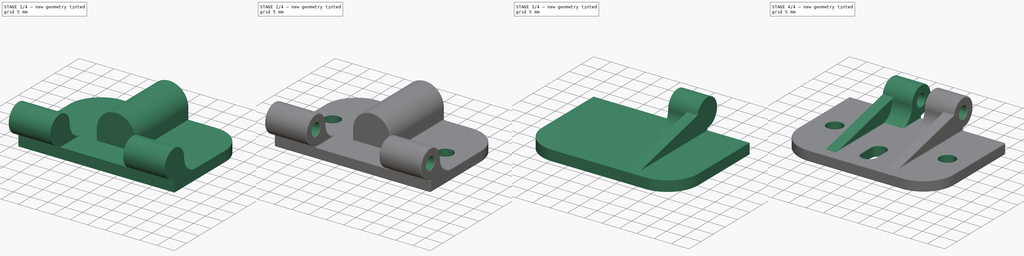
[diagram: build sequence overview — one tinted view per stage of 4, left to right]
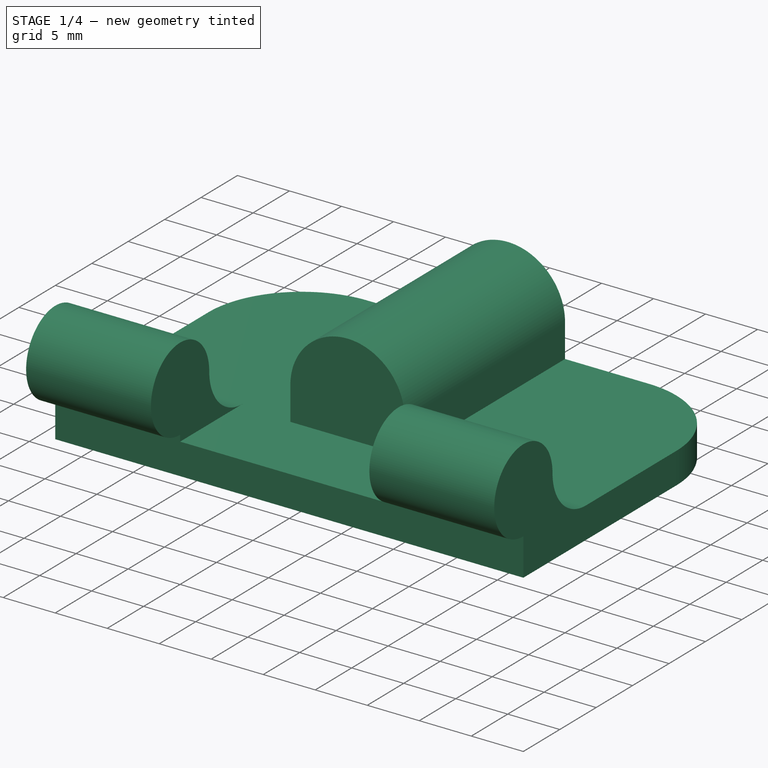
[diagram: stage 1 of 4 — iso view after this stage's code; geometry added in this stage tinted green]
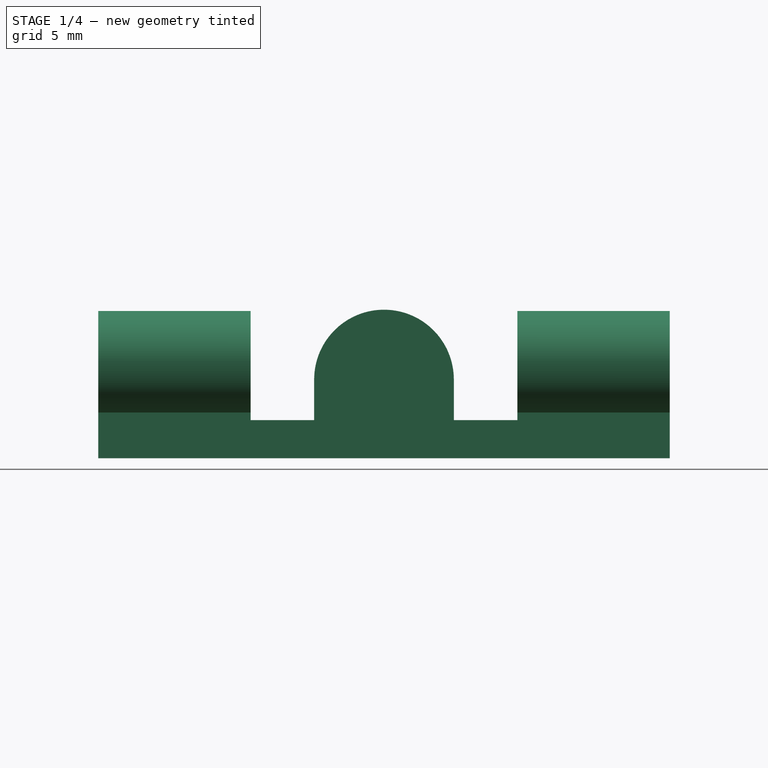
[diagram: stage 1 of 4 — front view after this stage's code; geometry added in this stage tinted green]
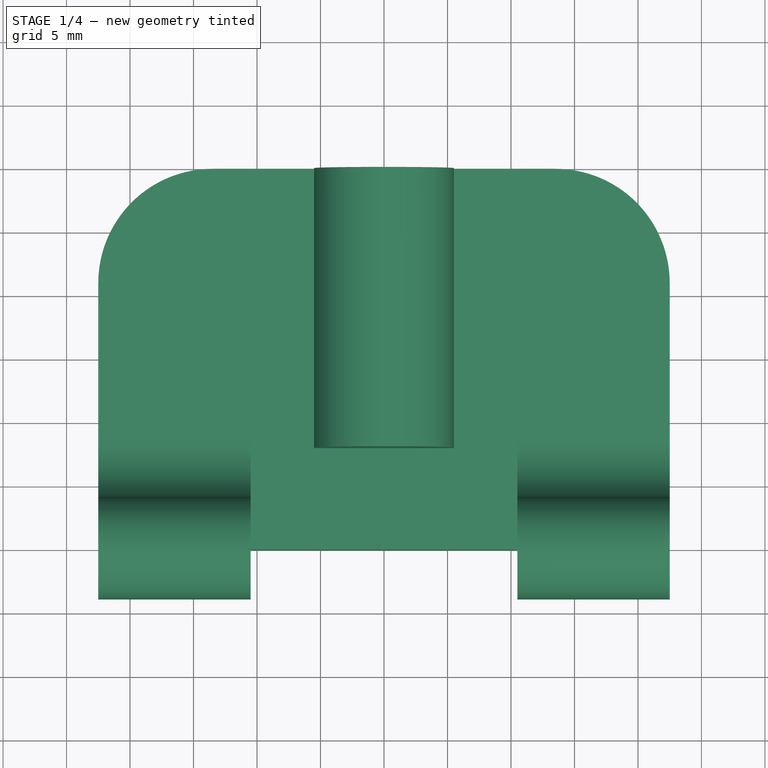
[diagram: stage 1 of 4 — top view after this stage's code; geometry added in this stage tinted green]
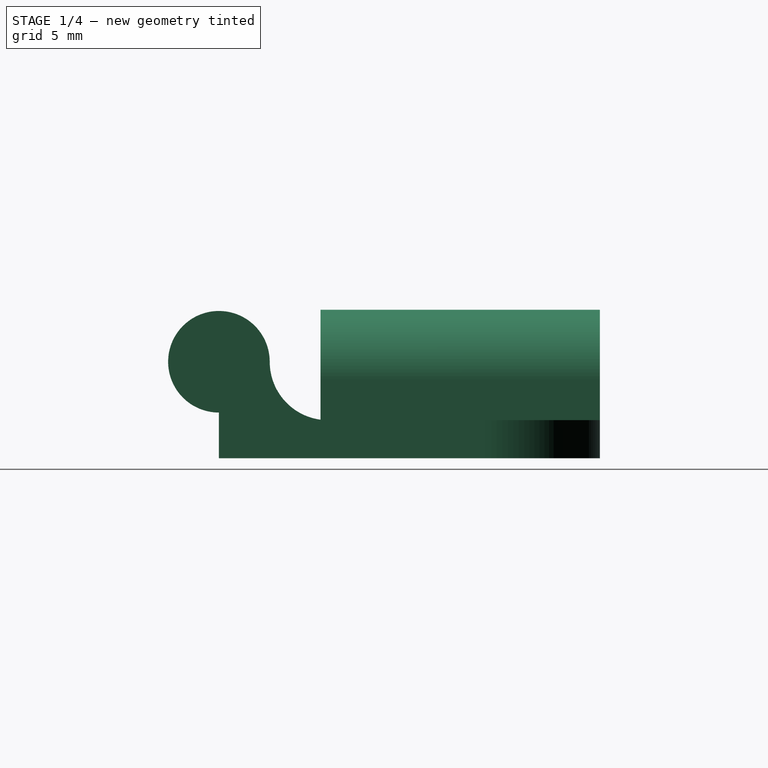
[diagram: stage 1 of 4 — right view after this stage's code; geometry added in this stage tinted green]
FCSTD DOCUMENT  (FreeCAD 0.22R35315 (Git))
Label: composit_stand8_door_hinge
License: All rights reserved
LicenseURL: http://en.wikipedia.org/wiki/All_rights_reserved
objects: Sketcher::SketchObject×7, PartDesign::Pad×6, PartDesign::SubShapeBinder×5, PartDesign::Pocket×4, PartDesign::Mirrored×2, PartDesign::Fillet×2, PartDesign::Body×2
note: 40 computed .brp shape members not serialized (recipe doc carries the construction recipe); baked Part::Feature solids carry a one-line shape summary decoded from their .brp

FEATURE [Sketcher::SketchObject] Sketch
  FullyConstrained = true
  sketch-geometry (2):
    g0: Circle CenterX=-16.25 CenterY=0 CenterZ=0 NormalX=0 NormalY=0 NormalZ=1 AngleXU=0 Radius=2.25
    g1: Circle CenterX=16.25 CenterY=0 CenterZ=0 NormalX=0 NormalY=0 NormalZ=1 AngleXU=0 Radius=2.25
  constraints (5):
    c: PointOnObject(g0,g-1)
    c: DistanceX(g0,g1) = 32.5
    c: Symmetric(g1,g0,g-2)
    c: Equal(g1,g0)
    c: Diameter(g1) = 4.5
FEATURE [Sketcher::SketchObject] Sketch001
  FullyConstrained = true
  sketch-geometry (14):
    g0: Circle CenterX=16.25 CenterY=0 CenterZ=0 NormalX=0 NormalY=0 NormalZ=1 AngleXU=0 Radius=2.25
    g1: Circle CenterX=-16.25 CenterY=0 CenterZ=0 NormalX=0 NormalY=0 NormalZ=1 AngleXU=0 Radius=2.25
    g2: ArcOfCircle CenterX=0 CenterY=5.151 CenterZ=0 NormalX=0 NormalY=0 NormalZ=1 AngleXU=0 Radius=2.125 StartAngle=3.14159 EndAngle=6.28319
    g3: ArcOfCircle CenterX=2e-16 CenterY=9.101 CenterZ=0 NormalX=0 NormalY=0 NormalZ=1 AngleXU=0 Radius=2.125 StartAngle=3e-16 EndAngle=3.14159
    g4: LineSegment StartX=-2.125 StartY=5.151 StartZ=0 EndX=-2.125 EndY=9.101 EndZ=0
    g5: LineSegment StartX=2.125 StartY=5.151 StartZ=0 EndX=2.125 EndY=9.101 EndZ=0
    g6: GeomPoint X=1.85403 Y=10.1394 Z=0
    g7: GeomPoint X=-14.1052 Y=0.679876 Z=0
    g8: GeomPoint X=-2.02567 Y=4.50889 Z=0
    g9: GeomPoint X=-18.2131 Y=-1.09945 Z=0
    g10: LineSegment StartX=-18.2131 StartY=-1.09945 StartZ=0 EndX=1.85403 EndY=10.1394 EndZ=0
    g11: LineSegment StartX=-14.1052 StartY=0.679876 StartZ=0 EndX=-2.02567 EndY=4.50889 EndZ=0
    g12: GeomPoint X=0 Y=3.026 Z=0
    g13: GeomPoint X=0 Y=11.226 Z=0
  constraints (31):
    c: PointOnObject(g0,g-1)
    c: Tangent(g2,g4) = 1.5708
    c: Tangent(g2,g5) = -1.5708
    c: Tangent(g3,g4) = 1.5708
    c: Tangent(g3,g5) = -1.5708
    c: Equal(g2,g3)
    c: Vertical(g5)
    c: PointOnObject(g2,g-2)
    c: DistanceX(g1,g0) = 32.5
    c: Symmetric(g1,g0,g-2)
    c: PointOnObject(g6,g3)
    c: PointOnObject(g7,g1)
    c: PointOnObject(g8,g2)
    c: PointOnObject(g9,g1)
    c: Coincident(g10,g9)
    c: Coincident(g10,g6)
    c: Coincident(g11,g7)
    c: Coincident(g11,g8)
    c: PointOnObject(g1,g10)
    c: PointOnObject(g1,g11)
    c: Perpendicular(g3,g10)
    c: Perpendicular(g2,g11)
    c: Radius(g2) = 2.125
    c: PointOnObject(g12,g2)
    c: PointOnObject(g13,g3)
    c: PointOnObject(g13,g-2)
    c: PointOnObject(g12,g-2)
    c: DistanceY(g12,g13) = 8.2
    c: Equal(g0,g1)
    c: Diameter(g0) = 4.5
    c: Distance(g10) = 23
FEATURE [Sketcher::SketchObject] Sketch002
  FullyConstrained = true
  MapMode = 5
  Support = -> [XY_Plane]
  sketch-geometry (9):
    g0: LineSegment StartX=-22.5 StartY=21 StartZ=0 EndX=-22.5 EndY=0 EndZ=0
    g1: LineSegment StartX=-22.5 StartY=0 StartZ=0 EndX=22.5 EndY=0 EndZ=0
    g2: LineSegment StartX=22.5 StartY=0 StartZ=0 EndX=22.5 EndY=21 EndZ=0
    g3: LineSegment StartX=13.5 StartY=30 StartZ=0 EndX=-13.5 EndY=30 EndZ=0
    g4: GeomPoint X=0 Y=15 Z=0
    g5: ArcOfCircle CenterX=13.5 CenterY=21 CenterZ=0 NormalX=0 NormalY=0 NormalZ=1 AngleXU=0 Radius=9 StartAngle=0 EndAngle=1.5708
    g6: GeomPoint X=22.5 Y=30 Z=0
    g7: ArcOfCircle CenterX=-13.5 CenterY=21 CenterZ=0 NormalX=0 NormalY=0 NormalZ=1 AngleXU=0 Radius=9 StartAngle=1.5708 EndAngle=3.14159
    g8: GeomPoint X=-22.5 Y=30 Z=0
  constraints (21):
    c: Coincident(g0,g1)
    c: Coincident(g1,g2)
    c: Vertical(g0)
    c: Vertical(g2)
    c: Horizontal(g1)
    c: Horizontal(g3)
    c: Symmetric(g2,g8,g4)
    c: PointOnObject(g4,g-2)
    c: PointOnObject(g1,g-1)
    c: PointOnObject(g6,g2)
    c: PointOnObject(g6,g3)
    c: Tangent(g2,g5) = -1.5708
    c: Tangent(g3,g5) = -1.5708
    c: PointOnObject(g8,g0)
    c: PointOnObject(g8,g3)
    c: Tangent(g0,g7) = -1.5708
    c: Tangent(g3,g7) = -1.5708
    c: DistanceY(g1,g6) = 30
    c: DistanceX(g0,g1) = 45
    c: Radius(g5) = 9
    c: Equal(g5,g7)
FEATURE [PartDesign::Pad] Pad
  Direction = (0,0,1)
  Length = 3
  Length2 = 10
  Profile = -> Sketch002
  ReferenceAxis = -> Sketch002 [N_Axis]
  Type = 0
FEATURE [Sketcher::SketchObject] Sketch003
  AttachmentOffset = pos=(0,0,-30) rot=(0,0,1;0rad)
  FullyConstrained = true
  MapMode = 5
  Placement = pos=(0,30,-6.7e-15) rot=(1,0,0;1.5708rad)
  Support = -> [XZ_Plane]
  sketch-geometry (7):
    g0: ArcOfCircle CenterX=0 CenterY=6.2 CenterZ=0 NormalX=0 NormalY=0 NormalZ=1 AngleXU=0 Radius=5.5 StartAngle=2e-16 EndAngle=3.14159
    g1: LineSegment StartX=-5.5 StartY=0 StartZ=0 EndX=5.5 EndY=0 EndZ=0
    g2: LineSegment StartX=5.5 StartY=0 StartZ=0 EndX=5.5 EndY=6.2 EndZ=0
    g3: LineSegment StartX=5.5 StartY=6.2 StartZ=0 EndX=-5.5 EndY=6.2 EndZ=0
    g4: LineSegment StartX=-5.5 StartY=6.2 StartZ=0 EndX=-5.5 EndY=0 EndZ=0
    g5: GeomPoint X=0 Y=3.1 Z=0
    g6: GeomPoint X=0 Y=11.7 Z=0
  constraints (17):
    c: PointOnObject(g0,g-2)
    c: Coincident(g1,g2)
    c: Coincident(g4,g1)
    c: Horizontal(g1)
    c: Horizontal(g3)
    c: Vertical(g2)
    c: Vertical(g4)
    c: Symmetric(g3,g1,g5)
    c: PointOnObject(g5,g-2)
    c: Tangent(g2,g0) = -1.5708
    c: Tangent(g4,g0) = -1.5708
    c: PointOnObject(g1,g-1)
    c: DistanceX(g1,g1) = 11
    c: PointOnObject(g6,g0)
    c: PointOnObject(g6,g-2)
    c: DistanceY(g6) = 11.7
    c: Coincident(g3,g0)
FEATURE [Sketcher::SketchObject] Sketch004
  AttachmentOffset = pos=(0,0,22.5) rot=(0,0,1;0rad)
  FullyConstrained = true
  MapMode = 5
  Placement = pos=(22.5,0,0) rot=(0.57735,0.57735,0.57735;2.0944rad)
  Support = -> [YZ_Plane]
  sketch-geometry (7):
    g0: ArcOfCircle CenterX=8.6 CenterY=7.6 CenterZ=0 NormalX=0 NormalY=0 NormalZ=1 AngleXU=0 Radius=4.6 StartAngle=3.14159 EndAngle=4.71239
    g1: ArcOfCircle CenterX=0 CenterY=7.6 CenterZ=0 NormalX=0 NormalY=0 NormalZ=1 AngleXU=0 Radius=4 StartAngle=1e-16 EndAngle=4.71239
    g2: LineSegment StartX=8.6 StartY=3 StartZ=0 EndX=8.6 EndY=0 EndZ=0
    g3: LineSegment StartX=8.6 StartY=0 StartZ=0 EndX=0 EndY=0 EndZ=0
    g4: LineSegment StartX=0 StartY=0 StartZ=0 EndX=-7e-16 EndY=3.6 EndZ=0
    g5: LineSegment StartX=4 StartY=7.6 StartZ=0 EndX=4 EndY=0 EndZ=0
    g6: GeomPoint X=0 Y=11.6 Z=0
  constraints (20):
    c: PointOnObject(g1,g-2)
    c: PointOnObject(g1,g-2)
    c: Diameter(g1) = 8
    c: Tangent(g1,g0) = 1.5708
    c: Coincident(g2,g3)
    c: Coincident(g3,g-1)
    c: Coincident(g3,g4)
    c: Coincident(g4,g1)
    c: Horizontal(g3)
    c: Vertical(g2)
    c: Perpendicular(g0,g2)
    c: Coincident(g0,g2)
    c: Tangent(g5,g0) = -1.5708
    c: PointOnObject(g5,g3)
    c: Vertical(g5)
    c: PointOnObject(g6,g1)
    c: PointOnObject(g6,g-2)
    c: DistanceY(g6) = 11.6
    c: DistanceY(g2,g2) = 3
    c: DistanceY(g1) = 7.6  'axis_offset'
FEATURE [PartDesign::Pad] Pad001
  BaseFeature = -> Pad
  Direction = (1,0,0)
  Length = 12
  Length2 = 10
  Profile = -> Sketch004
  ReferenceAxis = -> Sketch004 [N_Axis]
  Reversed = true
  Type = 0
FEATURE [PartDesign::Mirrored] Mirrored
  BaseFeature = -> Pad001
  MirrorPlane = -> YZ_Plane
  Originals = -> [Pad001]
FEATURE [PartDesign::Pad] Pad002
  BaseFeature = -> Mirrored
  Direction = (0,-1,2e-16)
  Length = 22
  Length2 = 10
  Profile = -> Sketch003
  ReferenceAxis = -> Sketch003 [N_Axis]
  Type = 0
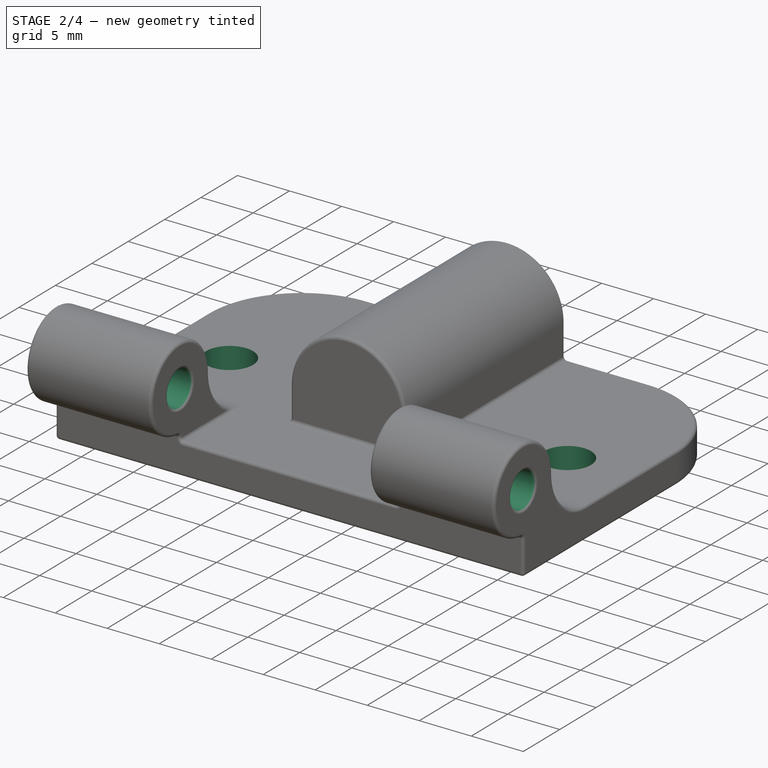
[diagram: stage 2 of 4 — iso view after this stage's code; geometry added in this stage tinted green]
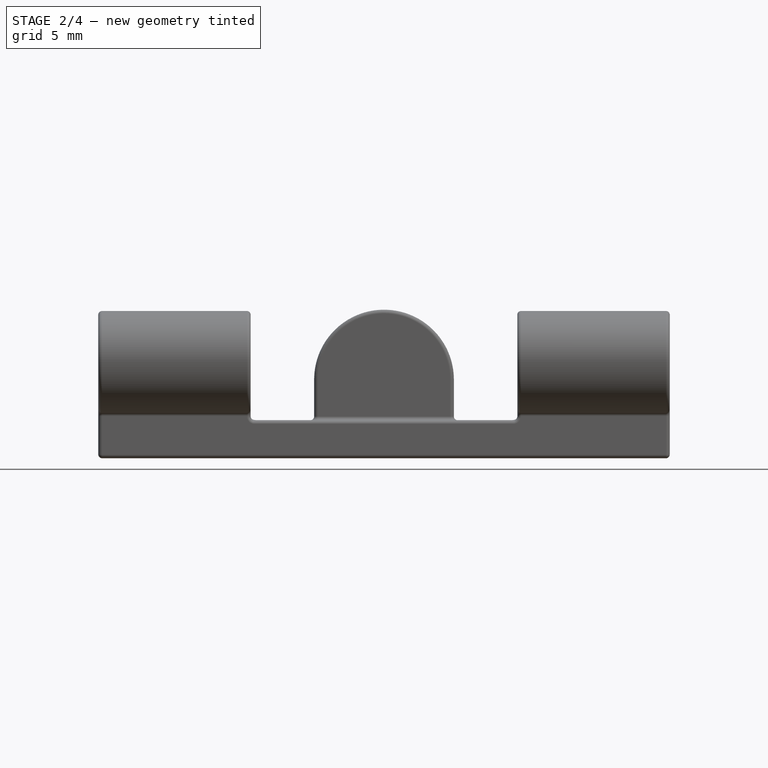
[diagram: stage 2 of 4 — front view after this stage's code; geometry added in this stage tinted green]
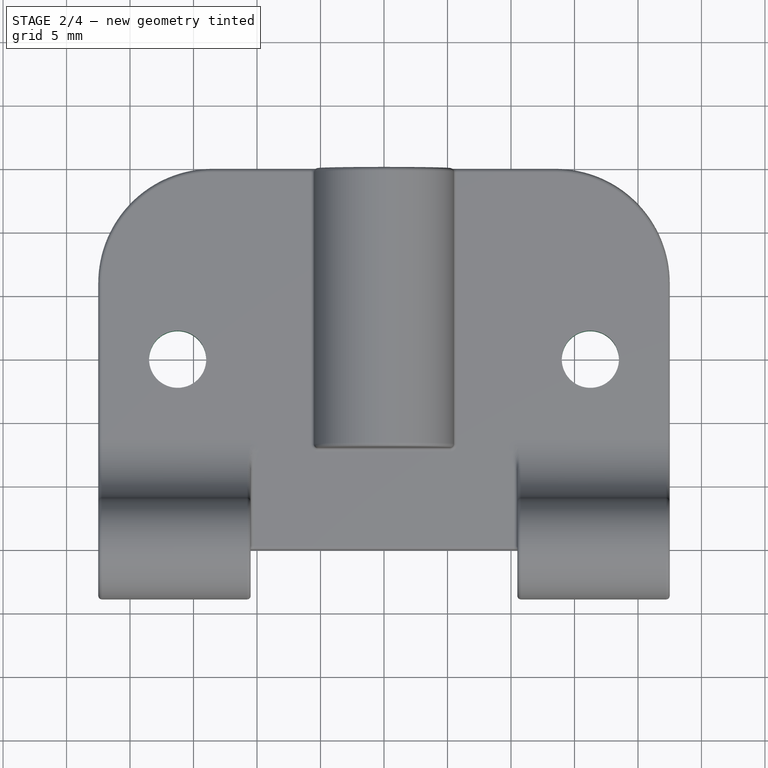
[diagram: stage 2 of 4 — top view after this stage's code; geometry added in this stage tinted green]
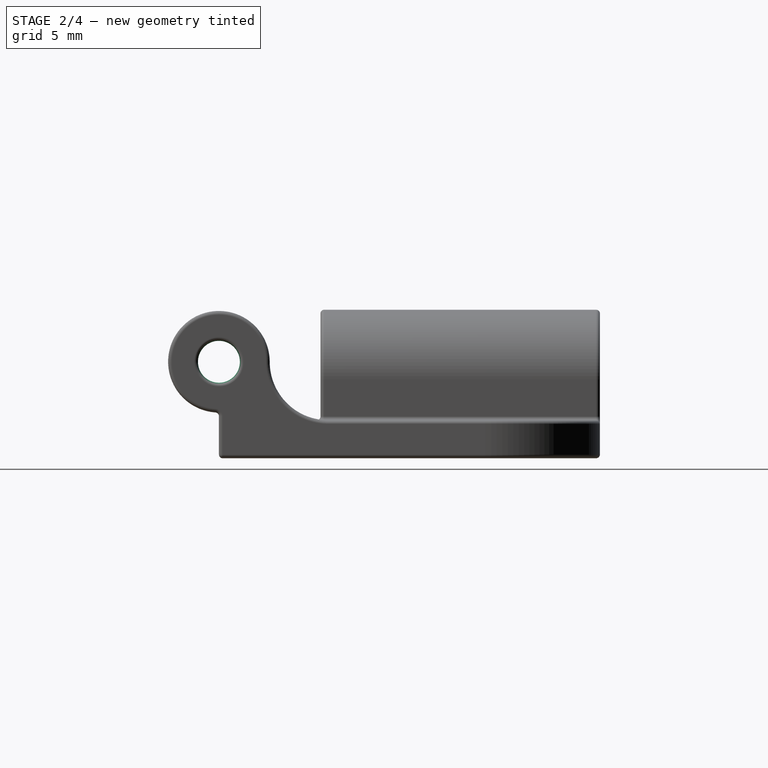
[diagram: stage 2 of 4 — right view after this stage's code; geometry added in this stage tinted green]
FEATURE [Sketcher::SketchObject] Sketch005
  FullyConstrained = true
  MapMode = 5
  Placement = pos=(0,0,0) rot=(0.57735,0.57735,0.57735;2.0944rad)
  Support = -> [YZ_Plane]
  sketch-geometry (1):
    g0: Circle CenterX=0 CenterY=7.6 CenterZ=0 NormalX=0 NormalY=0 NormalZ=1 AngleXU=0 Radius=1.65
  constraints (3):
    c: PointOnObject(g0,g-2)
    c: Diameter(g0) = 3.3
    c: DistanceY(g0) = 7.6
FEATURE [PartDesign::Pocket] Pocket
  BaseFeature = -> Pad002
  Direction = (-1,0,0)
  Length = 5
  Length2 = 5
  Midplane = true
  Profile = -> Sketch005
  ReferenceAxis = -> Sketch005 [N_Axis]
  Refine = true
  Type = 1
FEATURE [PartDesign::Fillet] Fillet
  Base = -> Pocket [Edge1,Edge2,Edge3,Edge4,Edge5,Edge6,Edge7,Edge8,Edge9,Edge10,Edge11,Edge12,Edge13,Edge14,Edge15,Edge16,Edge17,Edge18,Edge19,Edge20,Edge21,Edge22,Edge23,Edge24,Edge25,Edge26,Edge27,Edge28,Edge29,Edge30,Edge31,Edge32,Edge33,Edge34,Edge35,Edge36,Edge37,Edge38,Edge39,Edge40,+14 more]
  BaseFeature = -> Pocket
  Radius = 0.3
  SupportTransform = false
  UseAllEdges = true
FEATURE [PartDesign::SubShapeBinder] Binder005  label="fix1"
  BindCopyOnChange = 0
  BindMode = 0
  ClaimChildren = true
  Context = -> Body [Binder005.]
  Fuse = false
  MakeFace = false
  OffsetFill = false
  OffsetIntersection = false
  OffsetJoinType = 0
  OffsetOpenResult = false
  PartialLoad = false
  Placement = pos=(0,15,0) rot=(0,0,1;0rad)
  Relative = true
  Support = -> [Sketch]
  _Version = 2
FEATURE [PartDesign::Pocket] Pocket003
  BaseFeature = -> Fillet
  Direction = (0,0,-1)
  Length = 5
  Length2 = 5
  Midplane = true
  Profile = -> Binder005
  Type = 1
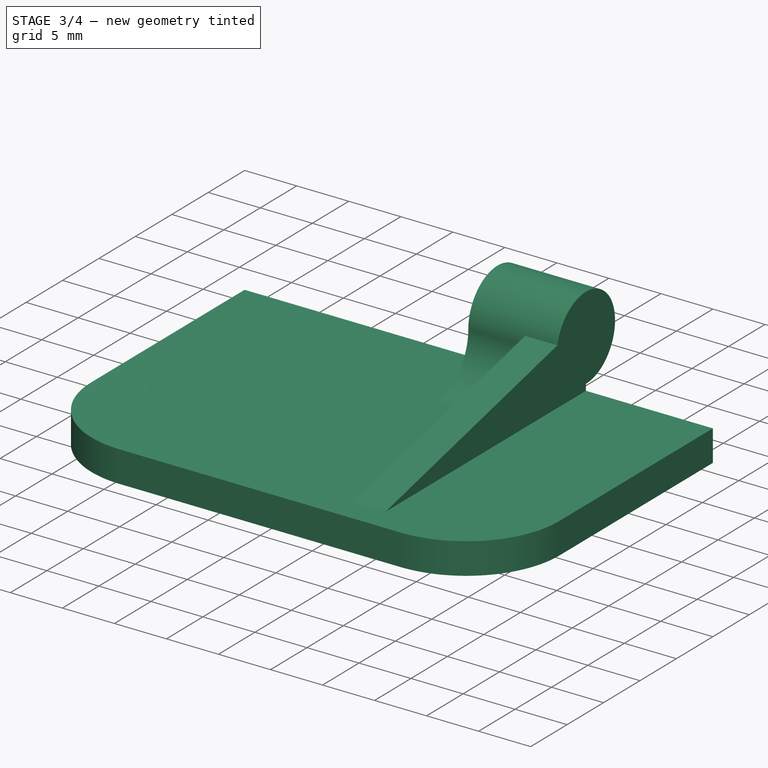
[diagram: stage 3 of 4 — iso view after this stage's code; geometry added in this stage tinted green]
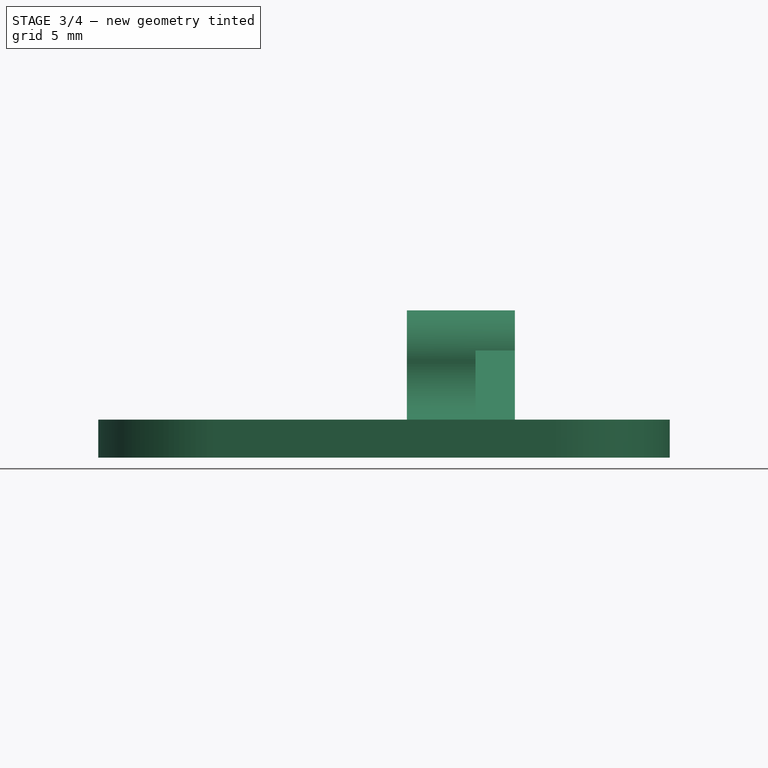
[diagram: stage 3 of 4 — front view after this stage's code; geometry added in this stage tinted green]
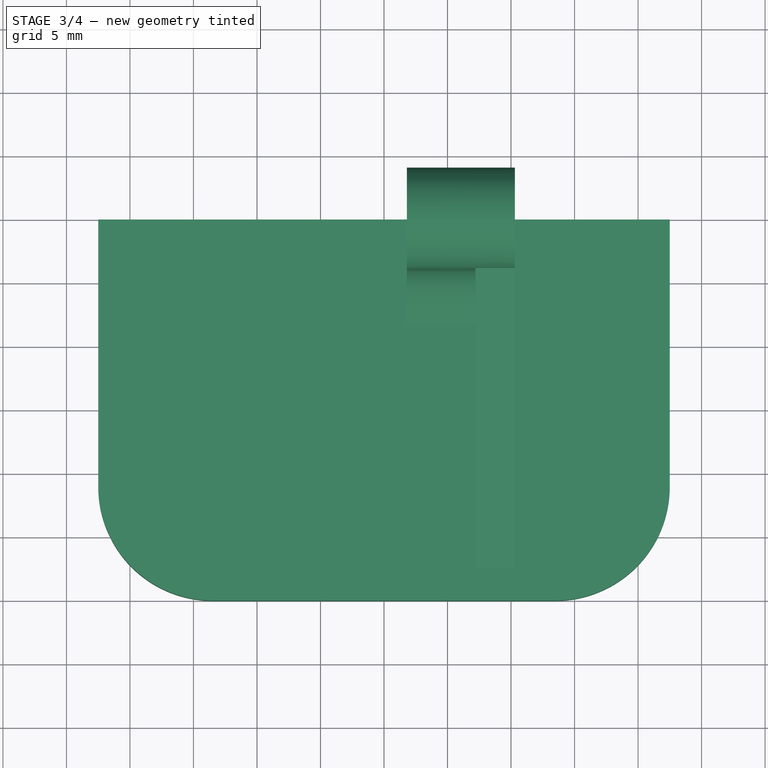
[diagram: stage 3 of 4 — top view after this stage's code; geometry added in this stage tinted green]
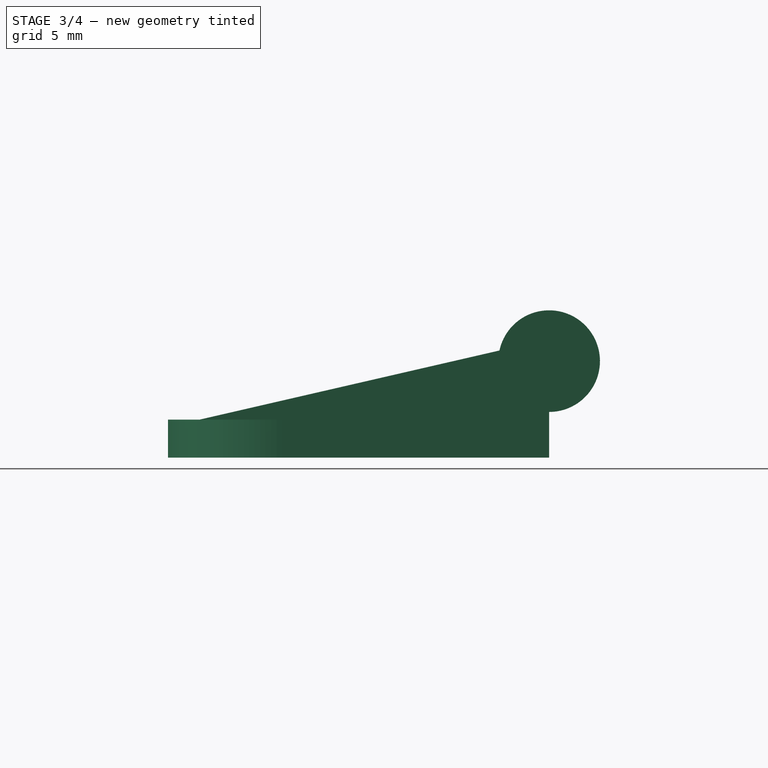
[diagram: stage 3 of 4 — right view after this stage's code; geometry added in this stage tinted green]
FEATURE [PartDesign::SubShapeBinder] Binder
  BindCopyOnChange = 0
  BindMode = 0
  ClaimChildren = false
  Context = -> Body001 [Binder.]
  Fuse = false
  MakeFace = true
  OffsetFill = false
  OffsetIntersection = false
  OffsetJoinType = 0
  OffsetOpenResult = false
  PartialLoad = false
  Placement = pos=(0,0,0) rot=(0,0,1;3.14159rad)
  Relative = true
  Support = -> [Body[Pad.Sketch002.]]
  _Version = 2
FEATURE [PartDesign::Pad] Pad003
  Direction = (0,0,1)
  Length = 3
  Length2 = 10
  Placement = pos=(0,0,0) rot=(0,0,1;3.14159rad)
  Profile = -> Binder
  Type = 0
FEATURE [PartDesign::SubShapeBinder] Binder001
  BindCopyOnChange = 0
  BindMode = 0
  ClaimChildren = false
  Context = -> Body001 [Binder001.]
  Fuse = false
  MakeFace = true
  OffsetFill = false
  OffsetIntersection = false
  OffsetJoinType = 0
  OffsetOpenResult = false
  PartialLoad = false
  Placement = pos=(10.3,0,0) rot=(0.57735,-0.57735,-0.57735;2.0944rad)
  Relative = false
  Support = -> [Body[Pad001.Sketch004.]]
  _Version = 2
FEATURE [PartDesign::Pad] Pad004
  BaseFeature = -> Pad003
  Direction = (-1,0,3e-16)
  Length = 8.5
  Length2 = 10
  Placement = pos=(0,0,0) rot=(0,0,1;3.14159rad)
  Profile = -> Binder001
  Type = 0
FEATURE [PartDesign::SubShapeBinder] Binder002
  BindCopyOnChange = 0
  BindMode = 0
  ClaimChildren = false
  Context = -> Body001 [Binder002.]
  Fuse = false
  MakeFace = true
  OffsetFill = false
  OffsetIntersection = false
  OffsetJoinType = 0
  OffsetOpenResult = false
  PartialLoad = false
  Relative = true
  Support = -> [Body[Pocket.Sketch005.]]
  _Version = 2
FEATURE [Sketcher::SketchObject] Sketch006
  AttachmentOffset = pos=(0,0,10.3) rot=(0,0,1;0rad)
  ExternalGeometry = -> [Binder001]
  FullyConstrained = true
  MapMode = 5
  Placement = pos=(10.3,0,0) rot=(0.57735,0.57735,0.57735;2.0944rad)
  Support = -> [YZ_Plane001]
  sketch-geometry (5):
    g0: LineSegment StartX=0 StartY=9.33806 StartZ=0 EndX=-27.5 EndY=3 EndZ=0
    g1: LineSegment StartX=-27.5 StartY=3 StartZ=0 EndX=-27.5 EndY=0 EndZ=0
    g2: LineSegment StartX=-27.5 StartY=0 StartZ=0 EndX=0 EndY=0 EndZ=0
    g3: LineSegment StartX=0 StartY=0 StartZ=0 EndX=0 EndY=9.33806 EndZ=0
    g4: GeomPoint X=-4.0701 Y=8.4 Z=0
  constraints (13):
    c: PointOnObject(g0,g-2)
    c: Coincident(g0,g1)
    c: PointOnObject(g1,g-1)
    c: Vertical(g1)
    c: Coincident(g1,g2)
    c: Coincident(g2,g-1)
    c: Coincident(g2,g3)
    c: Coincident(g3,g0)
    c: DistanceY(g1,g1) = 3
    c: PointOnObject(g4,g0)
    c: PointOnObject(g4,g-3)
    c: DistanceX(g1) = -27.5
    c: DistanceY(g4) = 8.4
FEATURE [PartDesign::Pad] Pad005
  BaseFeature = -> Pad004
  Direction = (1,0,0)
  Length = 3.1
  Length2 = 10
  Placement = pos=(0,0,0) rot=(0,0,1;3.14159rad)
  Profile = -> Sketch006
  ReferenceAxis = -> Sketch006 [N_Axis]
  Reversed = true
  Type = 0
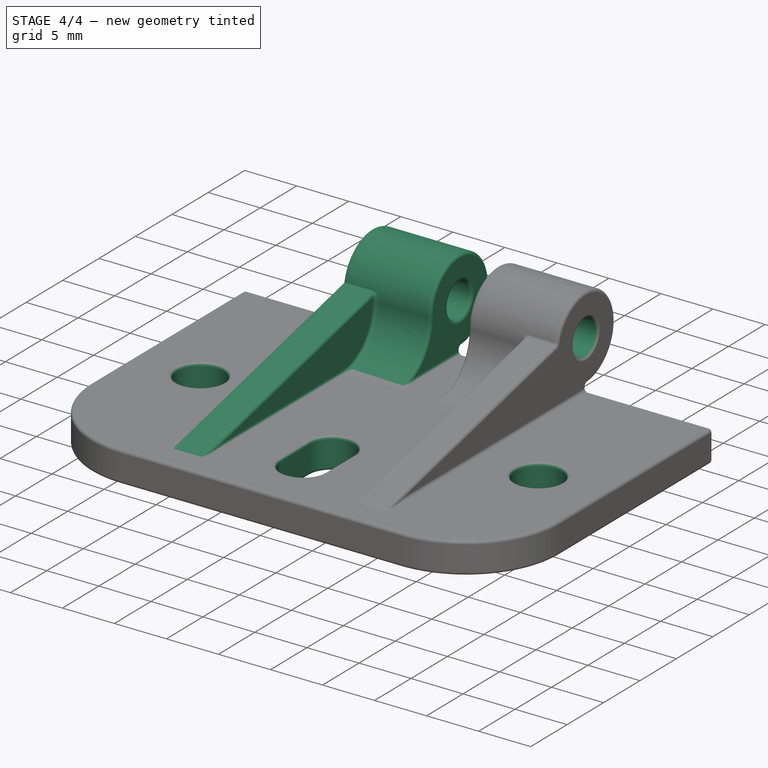
[diagram: stage 4 of 4 — iso view after this stage's code; geometry added in this stage tinted green]
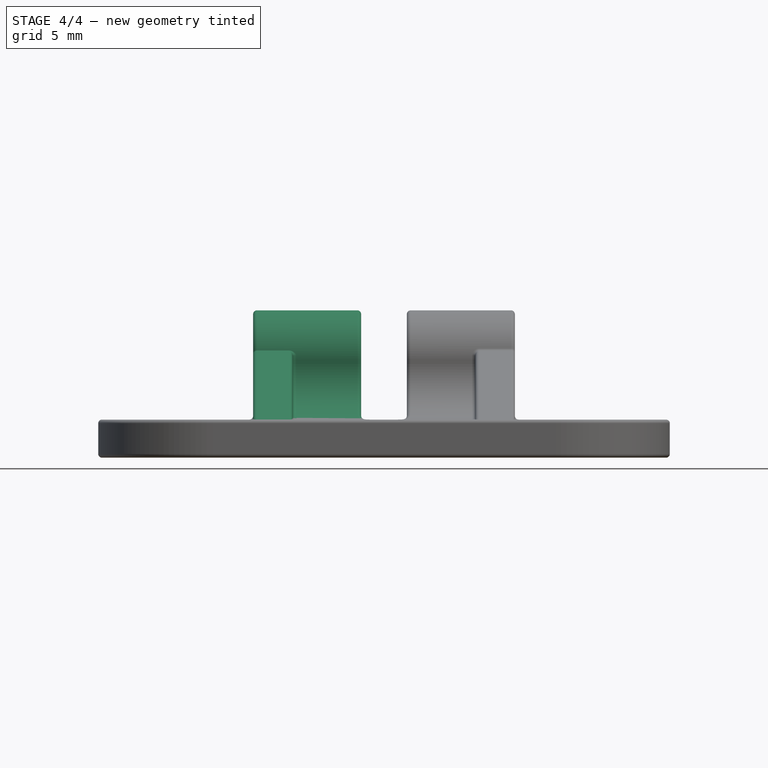
[diagram: stage 4 of 4 — front view after this stage's code; geometry added in this stage tinted green]
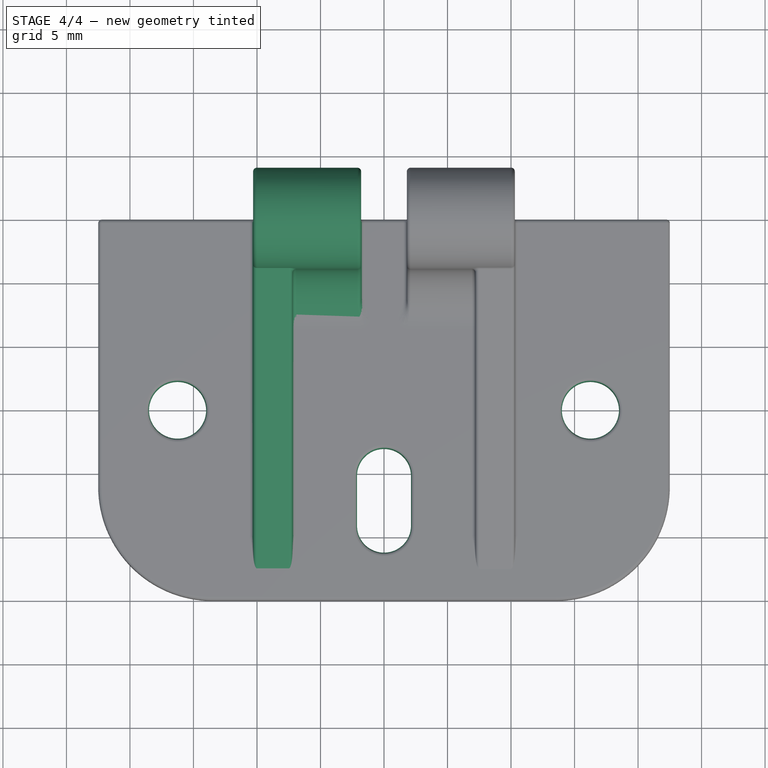
[diagram: stage 4 of 4 — top view after this stage's code; geometry added in this stage tinted green]
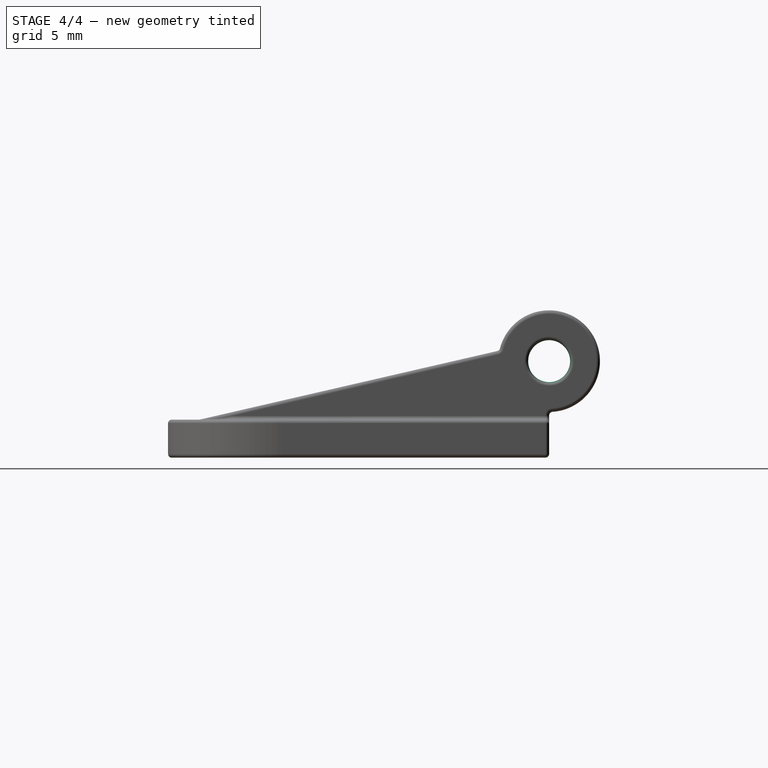
[diagram: stage 4 of 4 — right view after this stage's code; geometry added in this stage tinted green]
FEATURE [PartDesign::Mirrored] Mirrored001
  BaseFeature = -> Pad005
  MirrorPlane = -> YZ_Plane001
  Originals = -> [Pad004,Pad005]
  Placement = pos=(0,0,0) rot=(0,0,1;3.14159rad)
  Refine = true
FEATURE [PartDesign::Pocket] Pocket001
  BaseFeature = -> Mirrored001
  Direction = (-1,0,0)
  Length = 5
  Length2 = 5
  Midplane = true
  Placement = pos=(0,0,0) rot=(0,0,1;3.14159rad)
  Profile = -> Binder002
  Refine = true
  Type = 1
FEATURE [PartDesign::SubShapeBinder] Binder003  label="fix2"
  BindCopyOnChange = 0
  BindMode = 0
  ClaimChildren = false
  Context = -> Body001 [Binder003.]
  Fuse = false
  MakeFace = false
  OffsetFill = false
  OffsetIntersection = false
  OffsetJoinType = 0
  OffsetOpenResult = false
  PartialLoad = false
  Placement = pos=(0,-15,0) rot=(0,0,1;3.14159rad)
  Relative = true
  Support = -> [Sketch001]
  _Version = 2
FEATURE [PartDesign::Pocket] Pocket002
  BaseFeature = -> Pocket001
  Direction = (0,0,-1)
  Length = 5
  Length2 = 5
  Midplane = true
  Placement = pos=(0,0,0) rot=(0,0,1;3.14159rad)
  Profile = -> Binder003
  Type = 1
FEATURE [PartDesign::Body] Body
  Group = -> [Sketch002,Pad,Sketch003,Sketch004,Pad001,Mirrored,Pad002,Sketch005,Pocket,Fillet,Binder005,Pocket003]
  Origin = -> Origin
  Tip = -> Pocket003
FEATURE [PartDesign::Fillet] Fillet001
  Base = -> Pocket002 [Edge30,Edge73,Edge47,Edge28,Edge32,Edge39,Edge37,Edge76,Edge59,Edge74,Edge61,Edge35,Edge54,Edge38,Edge56,Edge11,Edge10,Edge9,Face4,Face13,Face2,Face24,Face5,Edge48,Edge64,Edge58,Edge55,Edge49]
  BaseFeature = -> Pocket002
  Placement = pos=(0,0,0) rot=(0,0,1;3.14159rad)
  Radius = 0.3
  SupportTransform = false
  UseAllEdges = false
FEATURE [PartDesign::Body] Body001
  Group = -> [Binder,Pad003,Binder001,Pad004,Sketch006,Pad005,Mirrored001,Binder002,Binder003,Pocket001,Pocket002,Fillet001]
  Origin = -> Origin001
  Tip = -> Fillet001
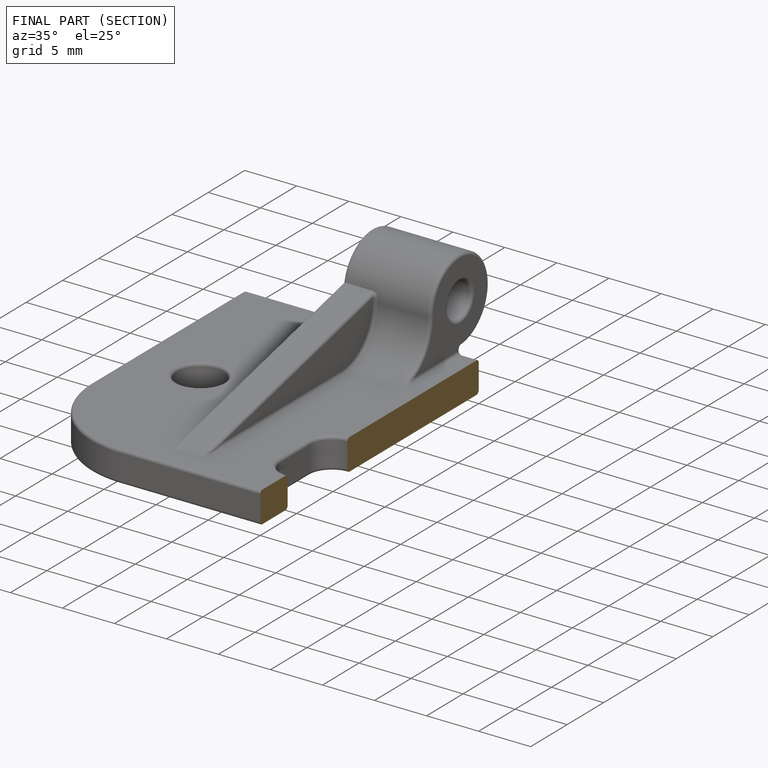
[diagram: finished part — half-section view (interior)]
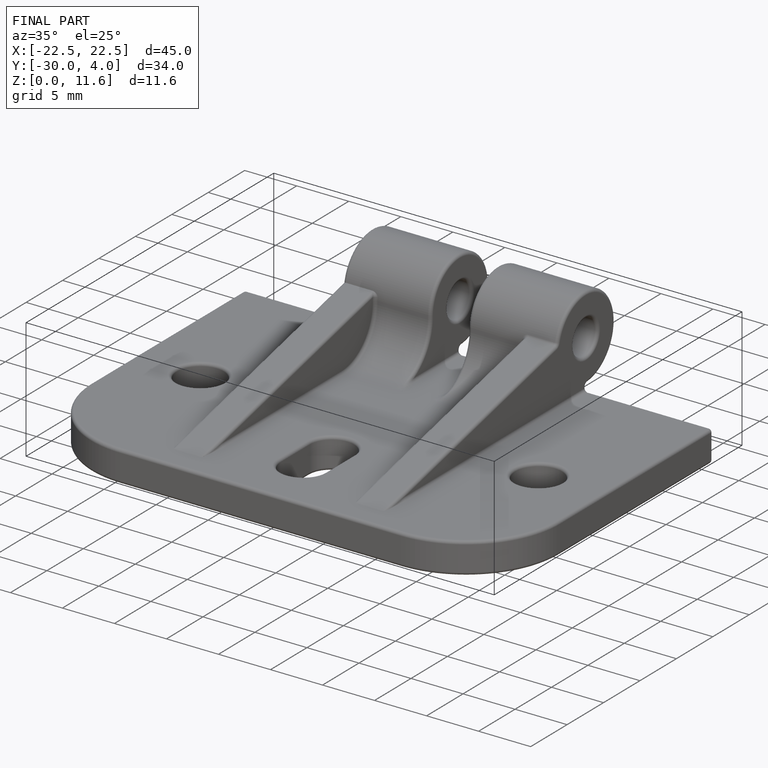
[diagram: finished part — iso view with bounding-box wireframe]
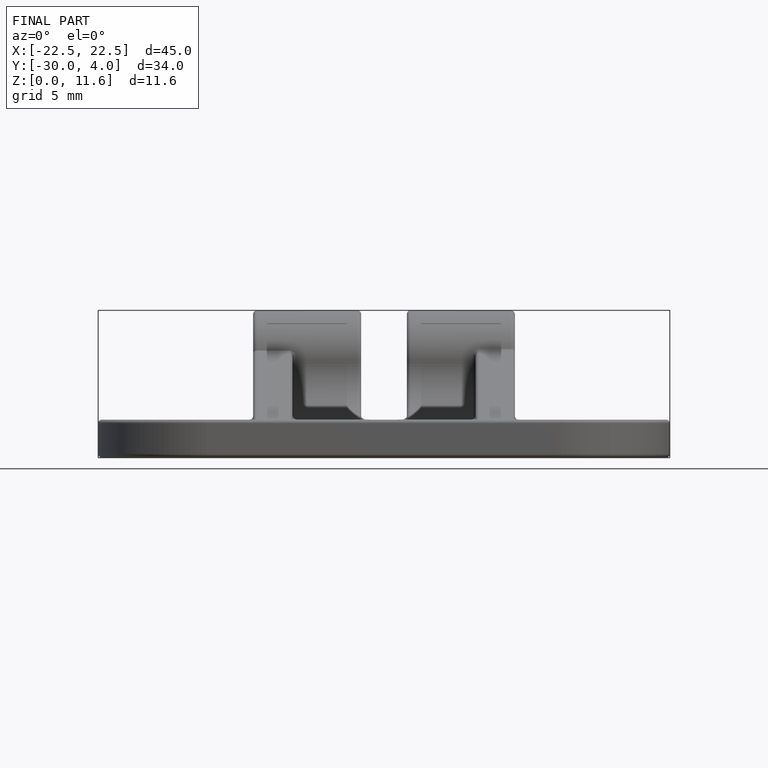
[diagram: finished part — front view with bounding-box wireframe]
